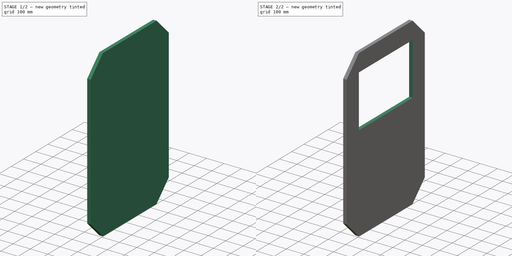
[diagram: build sequence overview — one tinted view per stage of 2, left to right]
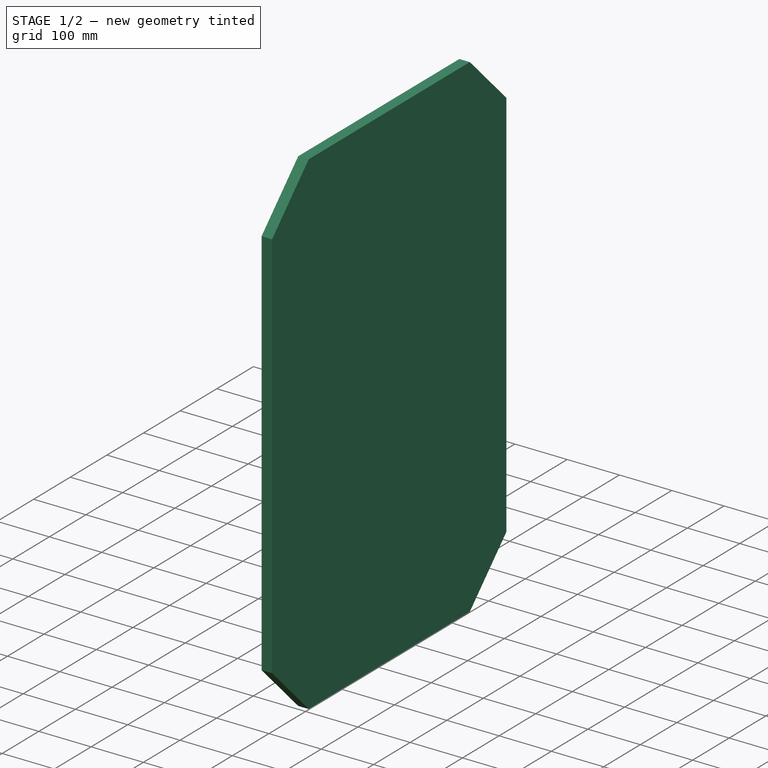
[diagram: stage 1 of 2 — iso view after this stage's code; geometry added in this stage tinted green]
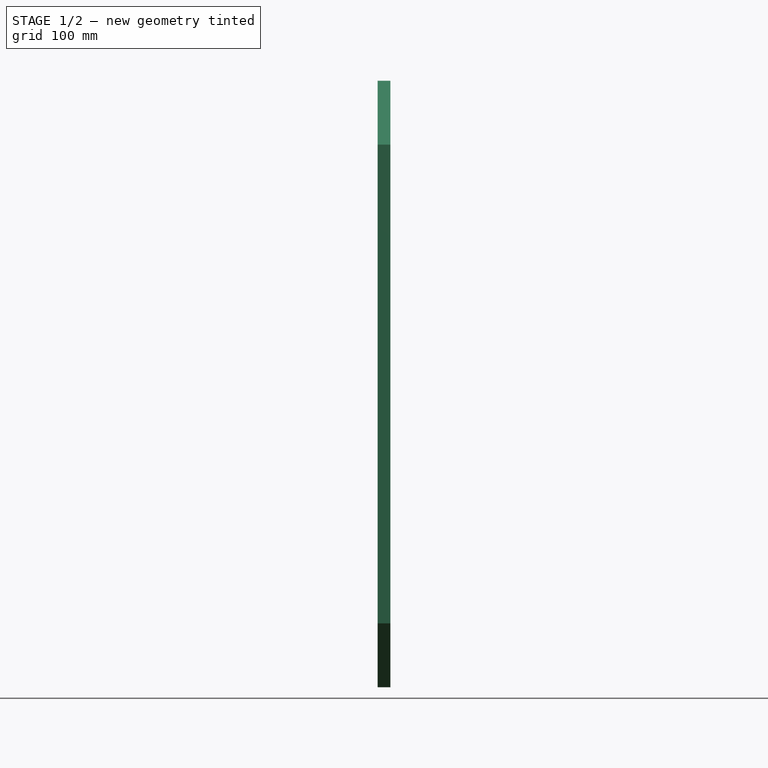
[diagram: stage 1 of 2 — front view after this stage's code; geometry added in this stage tinted green]
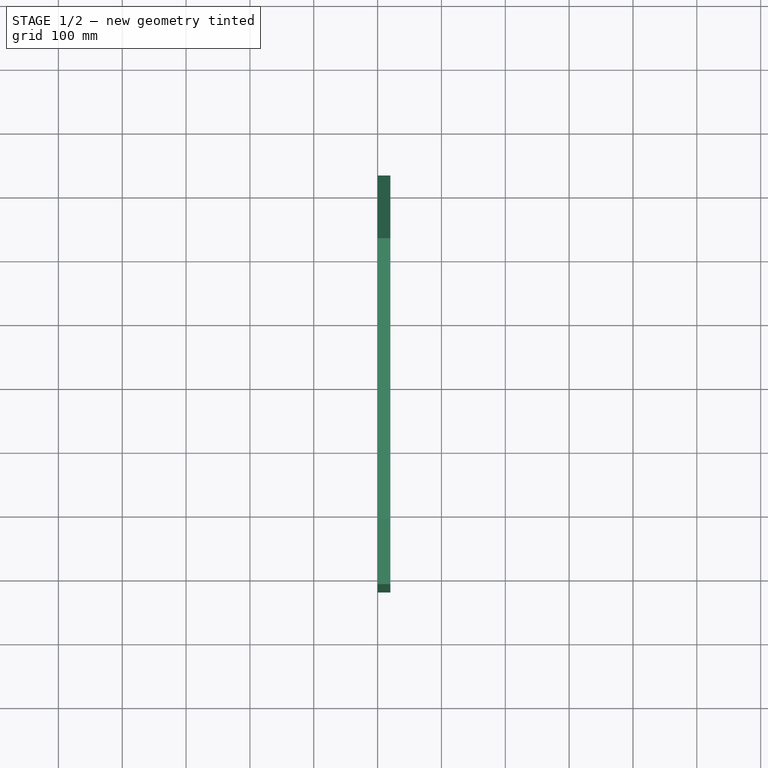
[diagram: stage 1 of 2 — top view after this stage's code; geometry added in this stage tinted green]
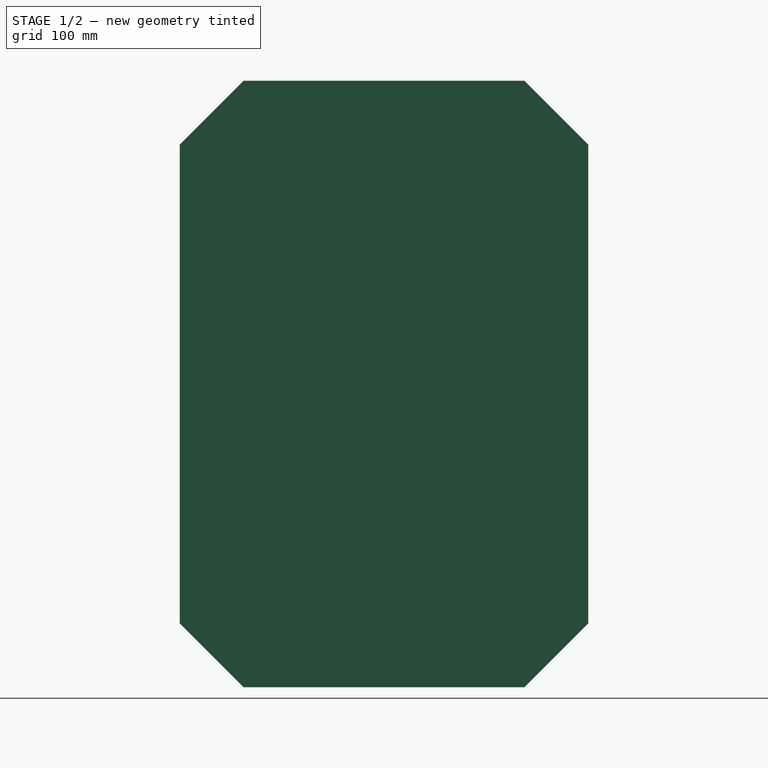
[diagram: stage 1 of 2 — right view after this stage's code; geometry added in this stage tinted green]
FCSTD DOCUMENT  (FreeCAD 0.20R29603 (Git))
Label: TürGroß
License: All rights reserved
LicenseURL: http://en.wikipedia.org/wiki/All_rights_reserved
objects: Sketcher::SketchObject×2, PartDesign::Pad×1, PartDesign::Pocket×1, PartDesign::Body×1
note: 7 computed .brp shape members not serialized (recipe doc carries the construction recipe); baked Part::Feature solids carry a one-line shape summary decoded from their .brp

FEATURE [Sketcher::SketchObject] Sketch
  FullyConstrained = true
  MapMode = 5
  Placement = pos=(0,0,0) rot=(0.57735,0.57735,0.57735;2.0944rad)
  Support = -> [YZ_Plane]
  sketch-geometry (8):
    g0: LineSegment StartX=-220 StartY=475 StartZ=0 EndX=220 EndY=475 EndZ=0
    g1: LineSegment StartX=220 StartY=475 StartZ=0 EndX=320 EndY=375 EndZ=0
    g2: LineSegment StartX=320 StartY=375 StartZ=0 EndX=320 EndY=-375 EndZ=0
    g3: LineSegment StartX=320 StartY=-375 StartZ=0 EndX=220 EndY=-475 EndZ=0
    g4: LineSegment StartX=220 StartY=-475 StartZ=0 EndX=-220 EndY=-475 EndZ=0
    g5: LineSegment StartX=-220 StartY=-475 StartZ=0 EndX=-320 EndY=-375 EndZ=0
    g6: LineSegment StartX=-320 StartY=-375 StartZ=0 EndX=-320 EndY=375 EndZ=0
    g7: LineSegment StartX=-320 StartY=375 StartZ=0 EndX=-220 EndY=475 EndZ=0
  constraints (20):
    c: Coincident(g0,g1)
    c: Coincident(g1,g2)
    c: Coincident(g2,g3)
    c: Coincident(g3,g4)
    c: Horizontal(g4)
    c: Coincident(g4,g5)
    c: Coincident(g5,g6)
    c: Vertical(g6)
    c: Coincident(g6,g7)
    c: Coincident(g7,g0)
    c: Symmetric(g6,g1,g-2)
    c: Symmetric(g0,g3,g-1)
    c: Distance(g0,g3) = 950
    c: Distance(g5,g2) = 640
    c: Distance(g4) = 440
    c: Equal(g4,g0)
    c: Symmetric(g0,g0,g-2)
    c: Distance(g2) = 750
    c: Equal(g2,g6)
    c: Symmetric(g1,g2,g-1)
FEATURE [PartDesign::Pad] Pad
  Direction = (1,-2e-16,3e-16)
  Length = 20
  Length2 = 10
  Placement = pos=(0,0,0) rot=(0.57735,0.57735,0.57735;2.0944rad)
  Profile = -> Sketch
  ReferenceAxis = -> Sketch [N_Axis]
  Type = 0
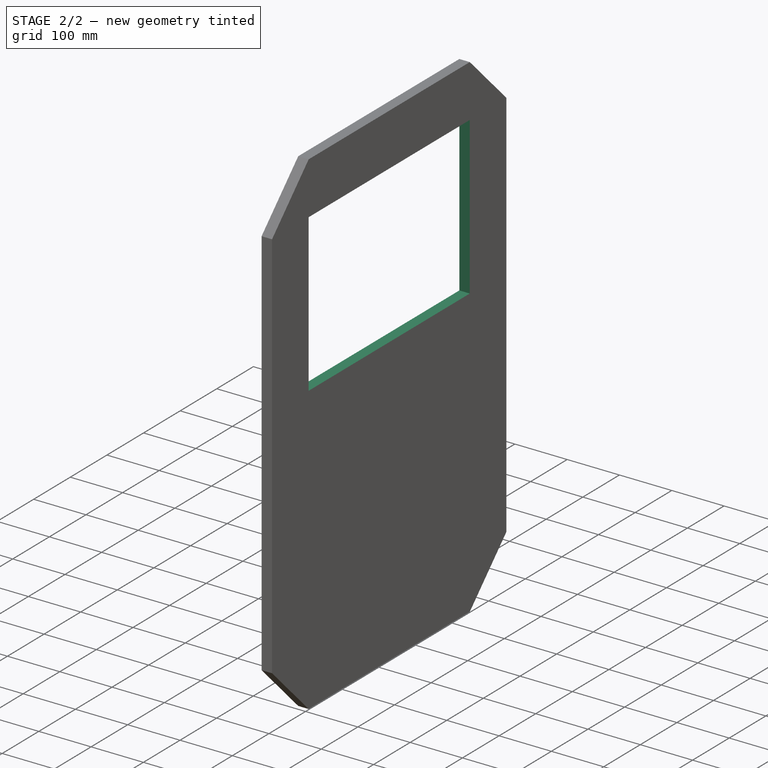
[diagram: stage 2 of 2 — iso view after this stage's code; geometry added in this stage tinted green]
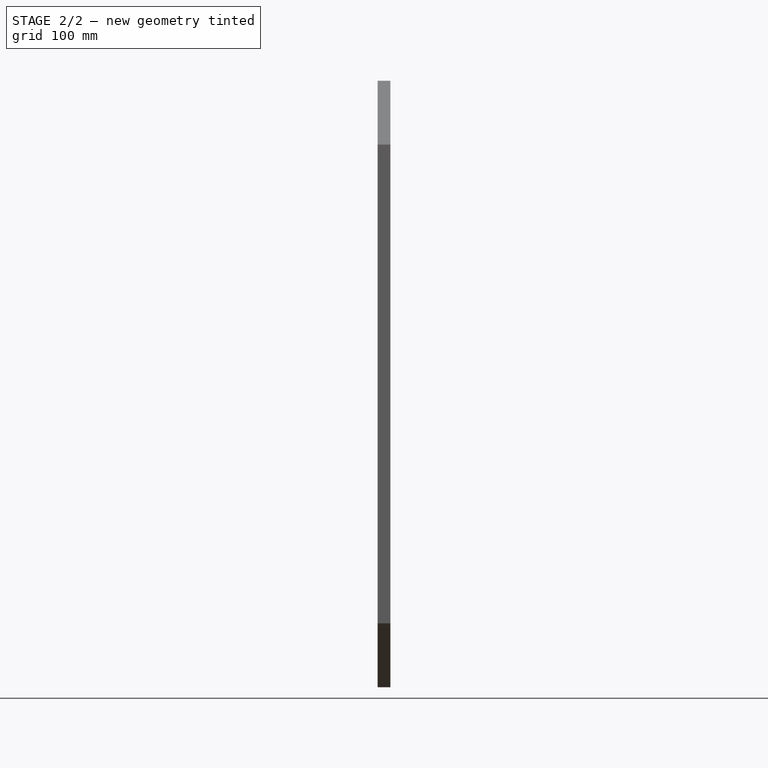
[diagram: stage 2 of 2 — front view after this stage's code; geometry added in this stage tinted green]
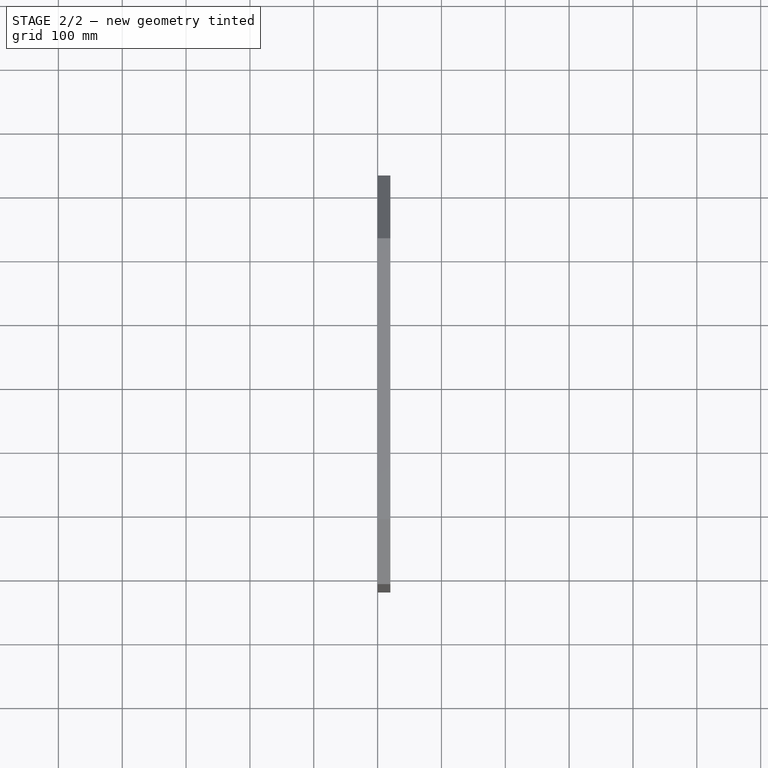
[diagram: stage 2 of 2 — top view after this stage's code; geometry added in this stage tinted green]
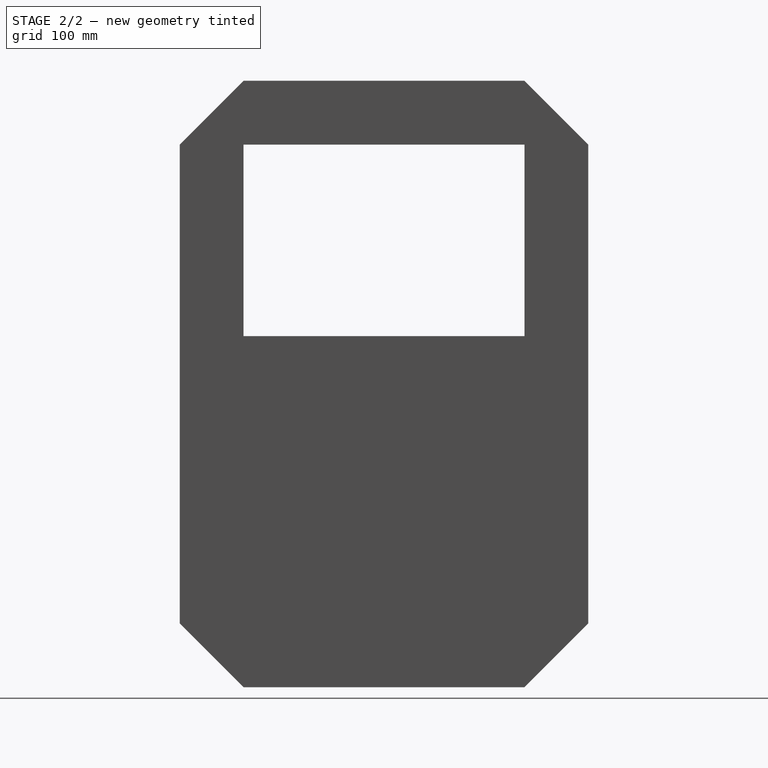
[diagram: stage 2 of 2 — right view after this stage's code; geometry added in this stage tinted green]
FEATURE [Sketcher::SketchObject] Sketch001
  ExternalGeometry = -> [Pad]
  FullyConstrained = true
  MapMode = 5
  Placement = pos=(20,-4.4e-15,4.4e-15) rot=(0.57735,0.57735,0.57735;2.0944rad)
  Support = -> [Pad]
  sketch-geometry (4):
    g0: LineSegment StartX=-220 StartY=375 StartZ=0 EndX=220 EndY=375 EndZ=0
    g1: LineSegment StartX=220 StartY=375 StartZ=0 EndX=220 EndY=75 EndZ=0
    g2: LineSegment StartX=220 StartY=75 StartZ=0 EndX=-220 EndY=75 EndZ=0
    g3: LineSegment StartX=-220 StartY=75 StartZ=0 EndX=-220 EndY=375 EndZ=0
  constraints (11):
    c: Coincident(g0,g1)
    c: Coincident(g1,g2)
    c: Coincident(g2,g3)
    c: Coincident(g3,g0)
    c: Horizontal(g0)
    c: Vertical(g1)
    c: Vertical(g3)
    c: Distance(g1) = 300
    c: Symmetric(g1,g2,g-2)
    c: Distance(g0,g-3) = 100
    c: Distance(g1,g-4) = 100
FEATURE [PartDesign::Pocket] Pocket
  BaseFeature = -> Pad
  Direction = (-1,2e-16,-2e-16)
  Length = 20
  Length2 = 5
  Placement = pos=(0,0,0) rot=(0.57735,0.57735,0.57735;2.0944rad)
  Profile = -> Sketch001
  ReferenceAxis = -> Sketch001 [N_Axis]
  Type = 0
FEATURE [PartDesign::Body] Body
  Group = -> [Sketch,Pad,Sketch001,Pocket]
  Origin = -> Origin
  Tip = -> Pocket
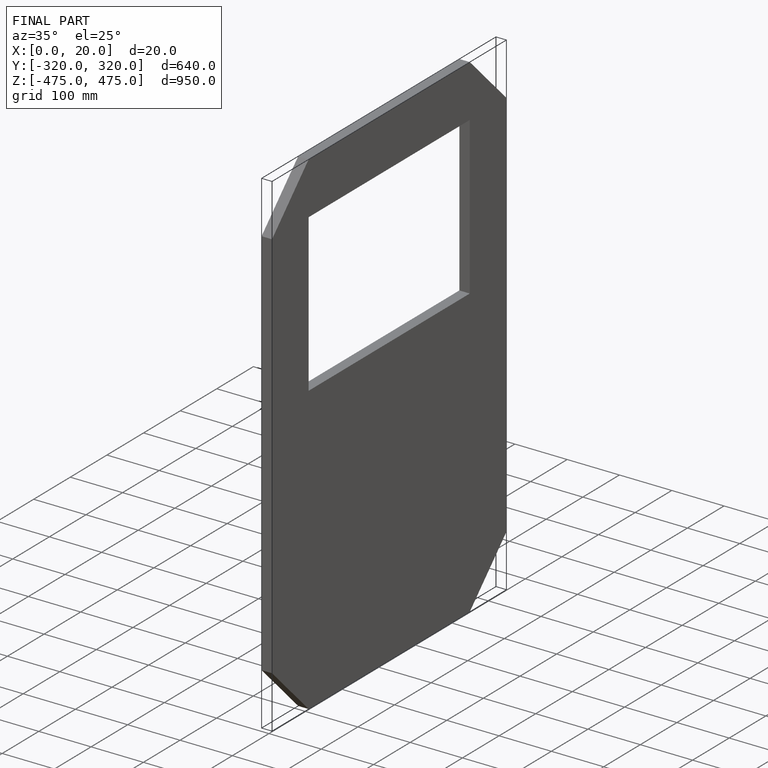
[diagram: finished part — iso view with bounding-box wireframe]
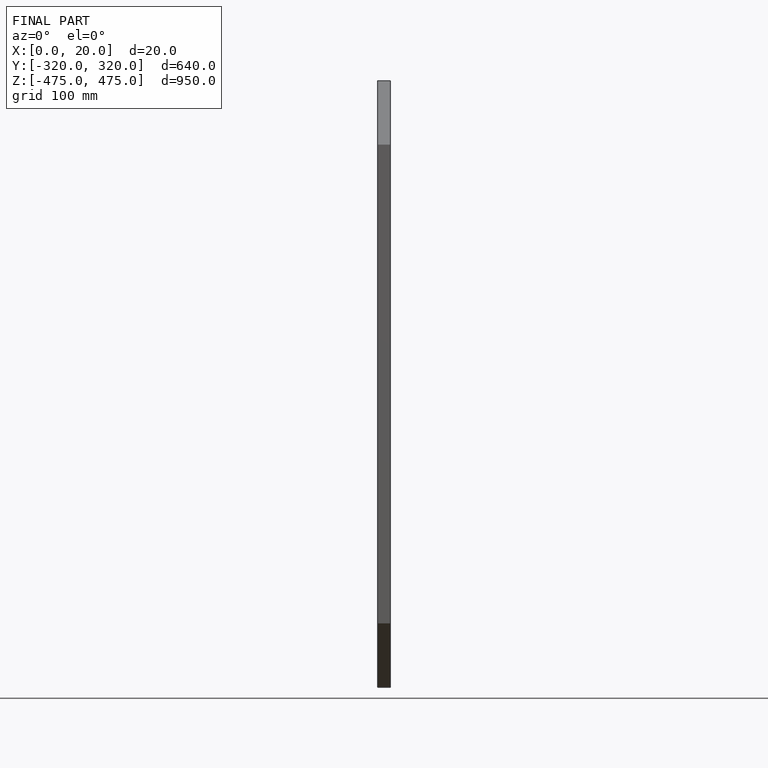
[diagram: finished part — front view with bounding-box wireframe]
